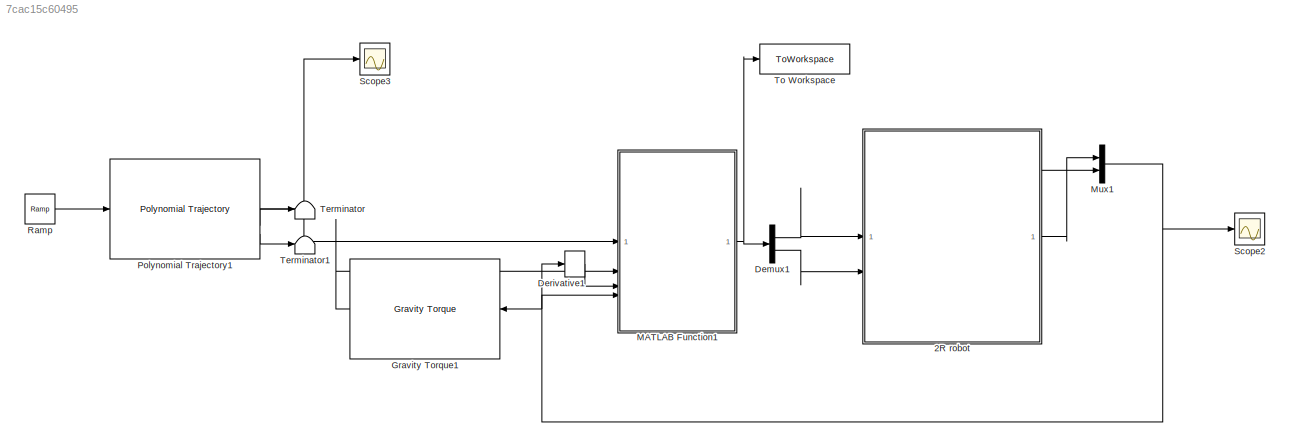
MODEL slx_7cac15c60495
KIND model
CONFIG AbsTol = auto
CONFIG EnableMultiTasking = off
CONFIG FixedStep = auto
CONFIG MaxStep = auto
CONFIG MinStep = auto
CONFIG RelTol = 1e-3
CONFIG SampleTimeConstraint = Unconstrained
CONFIG SolverName = VariableStepAuto
CONFIG StartTime = 0.0
CONFIG StopTime = 8
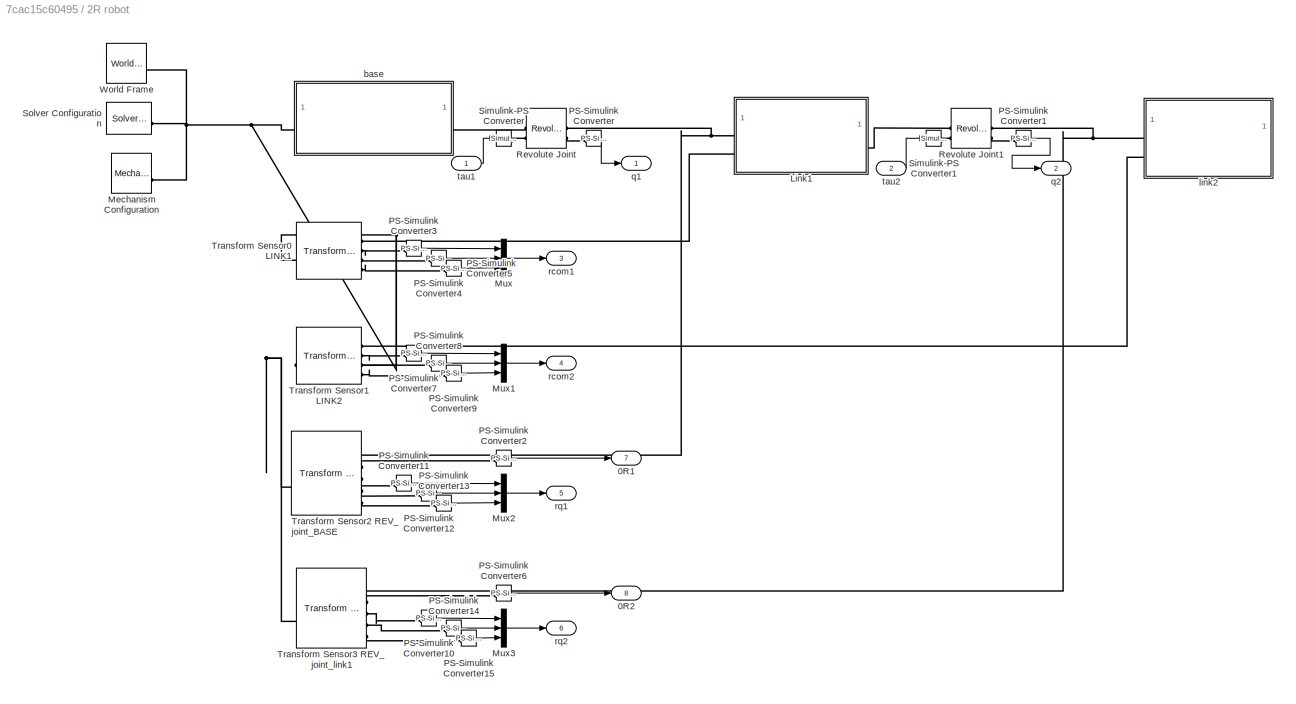
BLOCK [SubSystem] 2R robot
BLOCK [Outport] 2R robot/0R1
  Port = 7
BLOCK [Outport] 2R robot/0R2
  Port = 8
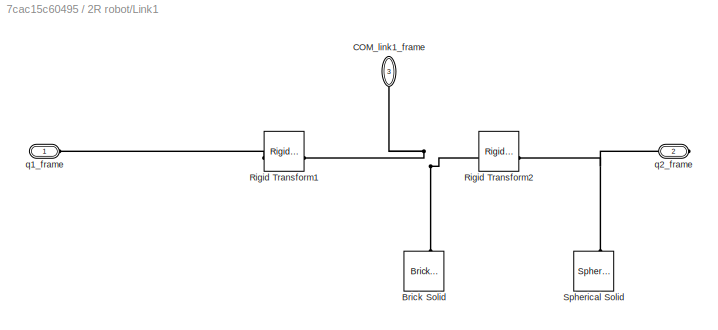
BLOCK [SubSystem] 2R robot/Link1
BLOCK [Reference] 2R robot/Link1/Brick Solid  REF=sm_lib/Body Elements/Brick Solid
  NameLocation = right
  SourceBlock = sm_lib/Body Elements/Brick Solid
  SourceType = Brick Solid
BLOCK [PMIOPort] 2R robot/Link1/COM_link1_frame
  Port = 3
  Side = Left
BLOCK [Reference] 2R robot/Link1/Rigid Transform1  REF=sm_lib/Frames and
Transforms/Rigid
Transform
  AttributesFormatString = %<Description>Pose COM of link1\n(translation of 1/2*l)
  SourceBlock = sm_lib/Frames and\nTransforms/Rigid\nTransform
  SourceType = Rigid\nTransform
BLOCK [Reference] 2R robot/Link1/Rigid Transform2  REF=sm_lib/Frames and
Transforms/Rigid
Transform
  AttributesFormatString = %<Description>Pose the COM of R \n(translation of 1/2* l1)
  SourceBlock = sm_lib/Frames and\nTransforms/Rigid\nTransform
  SourceType = Rigid\nTransform
BLOCK [Reference] 2R robot/Link1/Spherical Solid  REF=sm_lib/Body Elements/Spherical Solid
  NameLocation = right
  SourceBlock = sm_lib/Body Elements/Spherical Solid
  SourceType = Spherical Solid
BLOCK [PMIOPort] 2R robot/Link1/q1_frame
  Side = Left
BLOCK [PMIOPort] 2R robot/Link1/q2_frame
  Port = 2
  Side = Right
BLOCK [Reference] 2R robot/Mechanism Configuration  REF=sm_lib/Utilities/Mechanism
Configuration
  SourceBlock = sm_lib/Utilities/Mechanism\nConfiguration
  SourceType = Mechanism\nConfiguration
BLOCK [Mux] 2R robot/Mux
  DisplayOption = bar
  Inputs = 3
BLOCK [Mux] 2R robot/Mux1
  DisplayOption = bar
  Inputs = 3
BLOCK [Mux] 2R robot/Mux2
  DisplayOption = bar
  Inputs = 3
BLOCK [Mux] 2R robot/Mux3
  DisplayOption = bar
  Inputs = 3
BLOCK [Reference] 2R robot/PS-Simulink Converter  REF=nesl_utility/PS-Simulink
Converter
  SourceBlock = nesl_utility/PS-Simulink\nConverter
  SourceType = PS-Simulink\nConverter
BLOCK [Reference] 2R robot/PS-Simulink Converter1  REF=nesl_utility/PS-Simulink
Converter
  SourceBlock = nesl_utility/PS-Simulink\nConverter
  SourceType = PS-Simulink\nConverter
BLOCK [Reference] 2R robot/PS-Simulink Converter10  REF=nesl_utility/PS-Simulink
Converter
  SourceBlock = nesl_utility/PS-Simulink\nConverter
  SourceType = PS-Simulink\nConverter
BLOCK [Reference] 2R robot/PS-Simulink Converter11  REF=nesl_utility/PS-Simulink
Converter
  SourceBlock = nesl_utility/PS-Simulink\nConverter
  SourceType = PS-Simulink\nConverter
BLOCK [Reference] 2R robot/PS-Simulink Converter12  REF=nesl_utility/PS-Simulink
Converter
  SourceBlock = nesl_utility/PS-Simulink\nConverter
  SourceType = PS-Simulink\nConverter
BLOCK [Reference] 2R robot/PS-Simulink Converter13  REF=nesl_utility/PS-Simulink
Converter
  SourceBlock = nesl_utility/PS-Simulink\nConverter
  SourceType = PS-Simulink\nConverter
BLOCK [Reference] 2R robot/PS-Simulink Converter14  REF=nesl_utility/PS-Simulink
Converter
  SourceBlock = nesl_utility/PS-Simulink\nConverter
  SourceType = PS-Simulink\nConverter
BLOCK [Reference] 2R robot/PS-Simulink Converter15  REF=nesl_utility/PS-Simulink
Converter
  SourceBlock = nesl_utility/PS-Simulink\nConverter
  SourceType = PS-Simulink\nConverter
BLOCK [Reference] 2R robot/PS-Simulink Converter2  REF=nesl_utility/PS-Simulink
Converter
  SourceBlock = nesl_utility/PS-Simulink\nConverter
  SourceType = PS-Simulink\nConverter
BLOCK [Reference] 2R robot/PS-Simulink Converter3  REF=nesl_utility/PS-Simulink
Converter
  SourceBlock = nesl_utility/PS-Simulink\nConverter
  SourceType = PS-Simulink\nConverter
BLOCK [Reference] 2R robot/PS-Simulink Converter4  REF=nesl_utility/PS-Simulink
Converter
  SourceBlock = nesl_utility/PS-Simulink\nConverter
  SourceType = PS-Simulink\nConverter
BLOCK [Reference] 2R robot/PS-Simulink Converter5  REF=nesl_utility/PS-Simulink
Converter
  SourceBlock = nesl_utility/PS-Simulink\nConverter
  SourceType = PS-Simulink\nConverter
BLOCK [Reference] 2R robot/PS-Simulink Converter6  REF=nesl_utility/PS-Simulink
Converter
  SourceBlock = nesl_utility/PS-Simulink\nConverter
  SourceType = PS-Simulink\nConverter
BLOCK [Reference] 2R robot/PS-Simulink Converter7  REF=nesl_utility/PS-Simulink
Converter
  SourceBlock = nesl_utility/PS-Simulink\nConverter
  SourceType = PS-Simulink\nConverter
BLOCK [Reference] 2R robot/PS-Simulink Converter8  REF=nesl_utility/PS-Simulink
Converter
  SourceBlock = nesl_utility/PS-Simulink\nConverter
  SourceType = PS-Simulink\nConverter
BLOCK [Reference] 2R robot/PS-Simulink Converter9  REF=nesl_utility/PS-Simulink
Converter
  SourceBlock = nesl_utility/PS-Simulink\nConverter
  SourceType = PS-Simulink\nConverter
BLOCK [Reference] 2R robot/Revolute Joint  REF=sm_lib/Joints/Revolute Joint
  SourceBlock = sm_lib/Joints/Revolute Joint
  SourceType = Revolute Joint
BLOCK [Reference] 2R robot/Revolute Joint1  REF=sm_lib/Joints/Revolute Joint
  SourceBlock = sm_lib/Joints/Revolute Joint
  SourceType = Revolute Joint
BLOCK [Reference] 2R robot/Simulink-PS Converter  REF=nesl_utility/Simulink-PS
Converter
  SourceBlock = nesl_utility/Simulink-PS\nConverter
  SourceType = Simulink-PS\nConverter
BLOCK [Reference] 2R robot/Simulink-PS Converter1  REF=nesl_utility/Simulink-PS
Converter
  SourceBlock = nesl_utility/Simulink-PS\nConverter
  SourceType = Simulink-PS\nConverter
BLOCK [Reference] 2R robot/Solver Configuration  REF=nesl_utility/Solver
Configuration
  SourceBlock = nesl_utility/Solver\nConfiguration
  SourceType = Solver\nConfiguration
BLOCK [Reference] 2R robot/Transform Sensor0 LINK1  REF=sm_lib/Frames and
Transforms/Transform
Sensor
  SourceBlock = sm_lib/Frames and\nTransforms/Transform\nSensor
  SourceType = Transform\nSensor
BLOCK [Reference] 2R robot/Transform Sensor1 LINK2  REF=sm_lib/Frames and
Transforms/Transform
Sensor
  SourceBlock = sm_lib/Frames and\nTransforms/Transform\nSensor
  SourceType = Transform\nSensor
BLOCK [Reference] 2R robot/Transform Sensor2 REV_joint_BASE  REF=sm_lib/Frames and
Transforms/Transform
Sensor
  SourceBlock = sm_lib/Frames and\nTransforms/Transform\nSensor
  SourceType = Transform\nSensor
BLOCK [Reference] 2R robot/Transform Sensor3 REV_joint_link1  REF=sm_lib/Frames and
Transforms/Transform
Sensor
  SourceBlock = sm_lib/Frames and\nTransforms/Transform\nSensor
  SourceType = Transform\nSensor
BLOCK [Reference] 2R robot/World Frame  REF=sm_lib/Frames and
Transforms/World Frame
  SourceBlock = sm_lib/Frames and\nTransforms/World Frame
  SourceType = World Frame
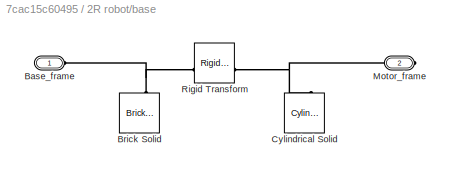
BLOCK [SubSystem] 2R robot/base
BLOCK [PMIOPort] 2R robot/base/Base_frame
  Side = Left
BLOCK [Reference] 2R robot/base/Brick Solid  REF=sm_lib/Body Elements/Brick Solid
  NameLocation = right
  SourceBlock = sm_lib/Body Elements/Brick Solid
  SourceType = Brick Solid
BLOCK [Reference] 2R robot/base/Cylindrical Solid  REF=sm_lib/Body Elements/Cylindrical Solid
  NameLocation = right
  SourceBlock = sm_lib/Body Elements/Cylindrical Solid
  SourceType = Cylindrical Solid
BLOCK [PMIOPort] 2R robot/base/Motor_frame
  Port = 2
  Side = Right
BLOCK [Reference] 2R robot/base/Rigid Transform  REF=sm_lib/Frames and
Transforms/Rigid
Transform
  SourceBlock = sm_lib/Frames and\nTransforms/Rigid\nTransform
  SourceType = Rigid\nTransform
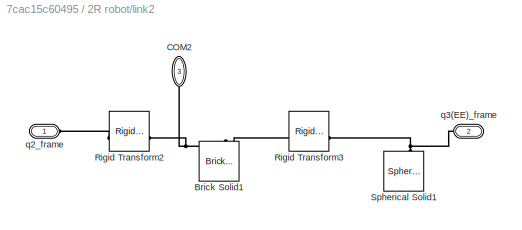
BLOCK [SubSystem] 2R robot/link2
BLOCK [Reference] 2R robot/link2/Brick Solid1  REF=sm_lib/Body Elements/Brick Solid
  NameLocation = right
  SourceBlock = sm_lib/Body Elements/Brick Solid
  SourceType = Brick Solid
BLOCK [PMIOPort] 2R robot/link2/COM2
  NameLocation = left
  Port = 3
  Side = Left
BLOCK [Reference] 2R robot/link2/Rigid Transform2  REF=sm_lib/Frames and
Transforms/Rigid
Transform
  SourceBlock = sm_lib/Frames and\nTransforms/Rigid\nTransform
  SourceType = Rigid\nTransform
BLOCK [Reference] 2R robot/link2/Rigid Transform3  REF=sm_lib/Frames and
Transforms/Rigid
Transform
  SourceBlock = sm_lib/Frames and\nTransforms/Rigid\nTransform
  SourceType = Rigid\nTransform
BLOCK [Reference] 2R robot/link2/Spherical Solid1  REF=sm_lib/Body Elements/Spherical Solid
  NameLocation = right
  SourceBlock = sm_lib/Body Elements/Spherical Solid
  SourceType = Spherical Solid
BLOCK [PMIOPort] 2R robot/link2/q2_frame
  Side = Left
BLOCK [PMIOPort] 2R robot/link2/q3(EE)_frame
  NameLocation = top
  Port = 2
  Side = Right
BLOCK [Outport] 2R robot/q1
BLOCK [Outport] 2R robot/q2
  Port = 2
BLOCK [Outport] 2R robot/rcom1
  Port = 3
BLOCK [Outport] 2R robot/rcom2
  Port = 4
BLOCK [Outport] 2R robot/rq1
  Port = 5
BLOCK [Outport] 2R robot/rq2
  Port = 6
BLOCK [Inport] 2R robot/tau1
BLOCK [Inport] 2R robot/tau2
  Port = 2
BLOCK [Demux] Demux1
  Outputs = 2
BLOCK [Derivative] Derivative1
BLOCK [Reference] Gravity Torque1  REF=robotmaniplib/Gravity Torque
  NameLocation = top
  SourceBlock = robotmaniplib/Gravity Torque
  SourceType = Gravity Torque
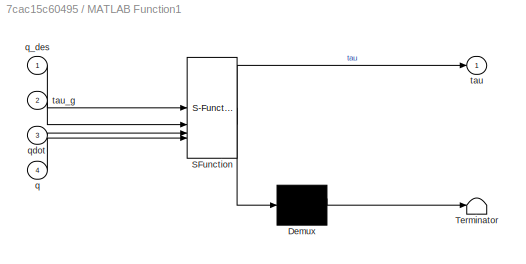
BLOCK [SubSystem] MATLAB Function1
  ErrorFcn = Stateflow.Translate.translate
  LibrarySourceBlock = simulink/User-Defined\nFunctions/MATLAB Function
  PermitHierarchicalResolution = ExplicitOnly
  SFBlockType = MATLAB Function
  TreatAsAtomicUnit = on
BLOCK [Demux] MATLAB Function1/ Demux 
  Outputs = 1
BLOCK [S-Function] MATLAB Function1/ SFunction 
  EnableBusSupport = on
  FunctionName = sf_sfun
  PortCounts = [4 2]
  SFcnIsStateOwnerBlock = off
  SFunctionDeploymentMode = off
  Tag = Stateflow S-Function 1
BLOCK [Terminator] MATLAB Function1/ Terminator 
BLOCK [Inport] MATLAB Function1/q
  Port = 4
BLOCK [Inport] MATLAB Function1/q_des
BLOCK [Inport] MATLAB Function1/qdot
  Port = 3
BLOCK [Outport] MATLAB Function1/tau
BLOCK [Inport] MATLAB Function1/tau_g
  Port = 2
BLOCK [Mux] Mux1
  DisplayOption = bar
  Inputs = 2
BLOCK [Reference] Polynomial Trajectory1  REF=robotcorelib/Polynomial Trajectory
  LibrarySourceBlock = robotutilslib/Polynomial Trajectory
  SourceBlock = robotcorelib/Polynomial Trajectory
  SourceType = robotics.slcore.internal.block.PolyTrajSys
BLOCK [Reference] Ramp  REF=simulink/Sources/Ramp
  SourceBlock = simulink/Sources/Ramp
  SourceType = Ramp
BLOCK [Scope] Scope2
  Floating = off
  NumInputPorts = 1
  ScopeSpecificationString = Simulink.scopes.TimeScopeBlockCfg('CurrentConfiguration', extmgr.ConfigurationSet(extmgr.Configuration('Core','General UI',true),extmgr.Configuration('Core','Source UI',true),extmgr.Configuration('Sources','WiredSimulink',true,'DataLoggingVariableName','ScopeData1'),extmgr.Configuration('Visuals','Time Domain',true,'SerializedDisplays',{struct('MinYLimReal','-1.02752','MaxYLimReal','2.36487','YLab...<+1412ch>
BLOCK [Scope] Scope3
  Floating = off
  NumInputPorts = 1
  ScopeSpecificationString = Simulink.scopes.TimeScopeBlockCfg('CurrentConfiguration', extmgr.ConfigurationSet(extmgr.Configuration('Core','General UI',true),extmgr.Configuration('Core','Source UI',true),extmgr.Configuration('Sources','WiredSimulink',true,'DataLoggingVariableName','ScopeData2'),extmgr.Configuration('Visuals','Time Domain',true,'SerializedDisplays',{struct('MinYLimReal','-0.24478','MaxYLimReal','2.20304','YLab...<+1441ch>
BLOCK [Terminator] Terminator
BLOCK [Terminator] Terminator1
BLOCK [ToWorkspace] To Workspace
  FixptAsFi = on
  MaxDataPoints = inf
  SampleTime = -1
  SaveFormat = Structure With Time
  VariableName = tau
LINE 2R robot/Mux1:1 -> 2R robot/rcom2:1
LINE 2R robot/Mux2:1 -> 2R robot/rq1:1
LINE 2R robot/Mux3:1 -> 2R robot/rq2:1
LINE 2R robot/Mux:1 -> 2R robot/rcom1:1
LINE 2R robot/PS-Simulink Converter10:1 -> 2R robot/Mux3:1
LINE 2R robot/PS-Simulink Converter11:1 -> 2R robot/Mux2:1
LINE 2R robot/PS-Simulink Converter12:1 -> 2R robot/Mux2:2
LINE 2R robot/PS-Simulink Converter13:1 -> 2R robot/Mux2:3
LINE 2R robot/PS-Simulink Converter14:1 -> 2R robot/Mux3:2
LINE 2R robot/PS-Simulink Converter15:1 -> 2R robot/Mux3:3
LINE 2R robot/PS-Simulink Converter1:1 -> 2R robot/q2:1
LINE 2R robot/PS-Simulink Converter2:1 -> 2R robot/0R1:1
LINE 2R robot/PS-Simulink Converter3:1 -> 2R robot/Mux:1
LINE 2R robot/PS-Simulink Converter4:1 -> 2R robot/Mux:2
LINE 2R robot/PS-Simulink Converter5:1 -> 2R robot/Mux:3
LINE 2R robot/PS-Simulink Converter6:1 -> 2R robot/0R2:1
LINE 2R robot/PS-Simulink Converter7:1 -> 2R robot/Mux1:1
LINE 2R robot/PS-Simulink Converter8:1 -> 2R robot/Mux1:2
LINE 2R robot/PS-Simulink Converter9:1 -> 2R robot/Mux1:3
LINE 2R robot/PS-Simulink Converter:1 -> 2R robot/q1:1
LINE 2R robot/tau1:1 -> 2R robot/Simulink-PS Converter:1
LINE 2R robot/tau2:1 -> 2R robot/Simulink-PS Converter1:1
LINE 2R robot:1 -> Mux1:1
LINE 2R robot:2 -> Mux1:2
LINE Demux1:1 -> 2R robot:1
LINE Demux1:2 -> 2R robot:2
LINE Derivative1:1 -> MATLAB Function1:3
LINE Gravity Torque1:1 -> MATLAB Function1:2
NET MATLAB Function1:1 -> Demux1:1, To Workspace:1
NET Mux1:1 -> Derivative1:1, Gravity Torque1:1, MATLAB Function1:4, Scope2:1
NET Polynomial Trajectory1:1 -> MATLAB Function1:1, Scope3:1
LINE Polynomial Trajectory1:2 -> Terminator:1
LINE Polynomial Trajectory1:3 -> Terminator1:1
LINE Ramp:1 -> Polynomial Trajectory1:1
PNET net1: 2R robot/Link1/Brick Solid:RConn1 -- 2R robot/Link1/COM_link1_frame:RConn1 -- 2R robot/Link1/Rigid Transform1:RConn1 -- 2R robot/Link1/Rigid Transform2:LConn1
PLINE 2R robot/Link1/Rigid Transform1:LConn1 -- 2R robot/Link1/q1_frame:RConn1
PNET net2: 2R robot/Link1/Rigid Transform2:RConn1 -- 2R robot/Link1/Spherical Solid:RConn1 -- 2R robot/Link1/q2_frame:RConn1
PNET net3: 2R robot/Link1:LConn1 -- 2R robot/Revolute Joint:RConn1 -- 2R robot/Transform Sensor2 REV_joint_BASE:RConn1
PLINE 2R robot/Link1:LConn2 -- 2R robot/Transform Sensor0 LINK1:RConn1
PLINE 2R robot/Link1:RConn1 -- 2R robot/Revolute Joint1:LConn1
PNET net4: 2R robot/Mechanism Configuration:RConn1 -- 2R robot/Solver Configuration:RConn1 -- 2R robot/Transform Sensor0 LINK1:LConn1 -- 2R robot/Transform Sensor1 LINK2:LConn1 -- 2R robot/Transform Sensor2 REV_joint_BASE:LConn1 -- 2R robot/Transform Sensor3 REV_joint_link1:LConn1 -- 2R robot/World Frame:RConn1 -- 2R robot/base:LConn1
PLINE 2R robot/PS-Simulink Converter10:LConn1 -- 2R robot/Transform Sensor3 REV_joint_link1:RConn3
PLINE 2R robot/PS-Simulink Converter11:LConn1 -- 2R robot/Transform Sensor2 REV_joint_BASE:RConn3
PLINE 2R robot/PS-Simulink Converter12:LConn1 -- 2R robot/Transform Sensor2 REV_joint_BASE:RConn4
PLINE 2R robot/PS-Simulink Converter13:LConn1 -- 2R robot/Transform Sensor2 REV_joint_BASE:RConn5
PLINE 2R robot/PS-Simulink Converter14:LConn1 -- 2R robot/Transform Sensor3 REV_joint_link1:RConn4
PLINE 2R robot/PS-Simulink Converter15:LConn1 -- 2R robot/Transform Sensor3 REV_joint_link1:RConn5
PLINE 2R robot/PS-Simulink Converter1:LConn1 -- 2R robot/Revolute Joint1:RConn2
PLINE 2R robot/PS-Simulink Converter2:LConn1 -- 2R robot/Transform Sensor2 REV_joint_BASE:RConn2
PLINE 2R robot/PS-Simulink Converter3:LConn1 -- 2R robot/Transform Sensor0 LINK1:RConn2
PLINE 2R robot/PS-Simulink Converter4:LConn1 -- 2R robot/Transform Sensor0 LINK1:RConn3
PLINE 2R robot/PS-Simulink Converter5:LConn1 -- 2R robot/Transform Sensor0 LINK1:RConn4
PLINE 2R robot/PS-Simulink Converter6:LConn1 -- 2R robot/Transform Sensor3 REV_joint_link1:RConn2
PLINE 2R robot/PS-Simulink Converter7:LConn1 -- 2R robot/Transform Sensor1 LINK2:RConn2
PLINE 2R robot/PS-Simulink Converter8:LConn1 -- 2R robot/Transform Sensor1 LINK2:RConn3
PLINE 2R robot/PS-Simulink Converter9:LConn1 -- 2R robot/Transform Sensor1 LINK2:RConn4
PLINE 2R robot/PS-Simulink Converter:LConn1 -- 2R robot/Revolute Joint:RConn2
PLINE 2R robot/Revolute Joint1:LConn2 -- 2R robot/Simulink-PS Converter1:RConn1
PNET net5: 2R robot/Revolute Joint1:RConn1 -- 2R robot/Transform Sensor3 REV_joint_link1:RConn1 -- 2R robot/link2:LConn1
PLINE 2R robot/Revolute Joint:LConn1 -- 2R robot/base:RConn1
PLINE 2R robot/Revolute Joint:LConn2 -- 2R robot/Simulink-PS Converter:RConn1
PLINE 2R robot/Transform Sensor1 LINK2:RConn1 -- 2R robot/link2:LConn2
PNET net6: 2R robot/base/Base_frame:RConn1 -- 2R robot/base/Brick Solid:RConn1 -- 2R robot/base/Rigid Transform:LConn1
PNET net7: 2R robot/base/Cylindrical Solid:RConn1 -- 2R robot/base/Motor_frame:RConn1 -- 2R robot/base/Rigid Transform:RConn1
PNET net8: 2R robot/link2/Brick Solid1:RConn1 -- 2R robot/link2/COM2:RConn1 -- 2R robot/link2/Rigid Transform2:RConn1 -- 2R robot/link2/Rigid Transform3:LConn1
PLINE 2R robot/link2/Rigid Transform2:LConn1 -- 2R robot/link2/q2_frame:RConn1
PNET net9: 2R robot/link2/Rigid Transform3:RConn1 -- 2R robot/link2/Spherical Solid1:RConn1 -- 2R robot/link2/q3(EE)_frame:RConn1
note: NET lines group one-source signal fan-out (src -> all destinations, sorted); 1:1 wires keep LINE; PNET lines group multi-terminal physical nets as a canonical sorted terminal list (undirected conserving connections); 2-terminal nets keep the pairwise PLINE form
CHART MATLAB Function1 states=1 transitions=1
  STATE_LABEL 'eML_blk_kernel()'
  STATE_LABEL 'SCRIPT:\nfunction tau = fcn(q_des,tau_g, qdot, q)\n\nKp = 5;\nKd = 1;\n\n%compute PD control for Regulation\ntau = Kp*(q_des-q)-Kd*qdot + tau_g;'
CHART  states=0 transitions=0
